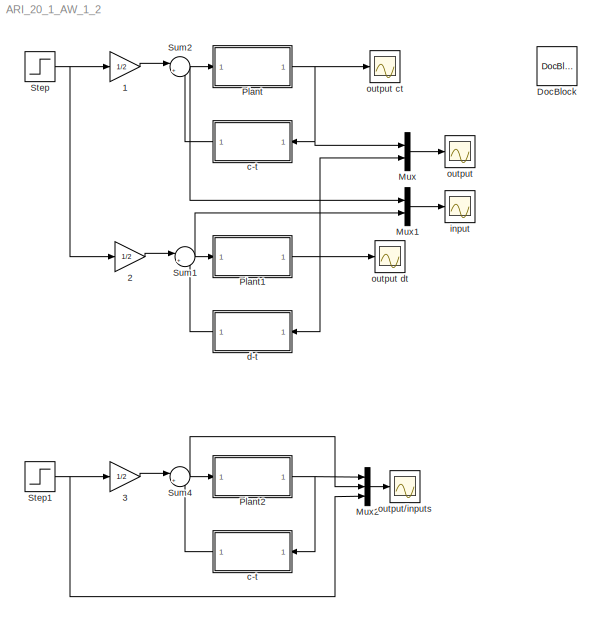
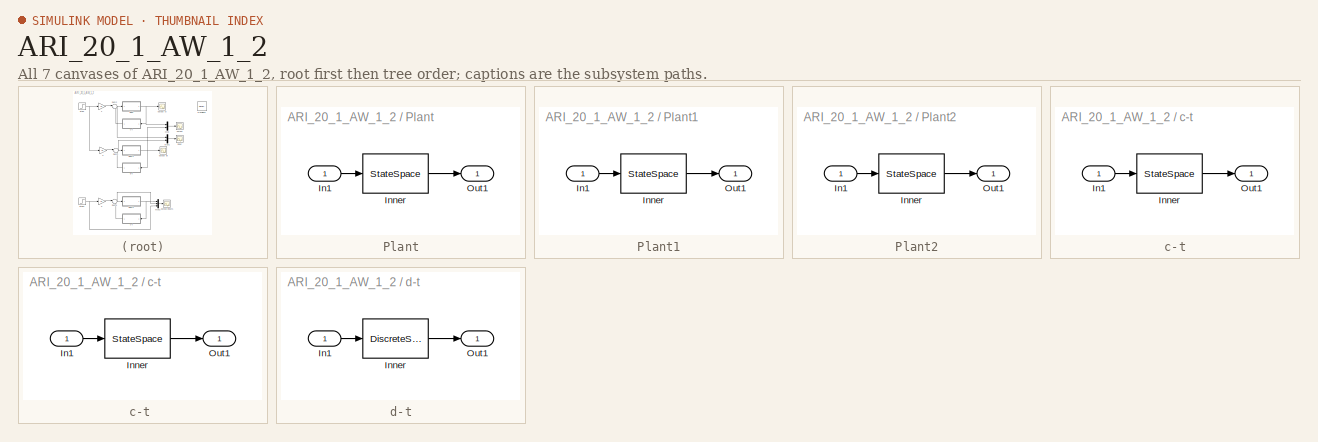
[diagram: thumbnail index - all 7 canvases of the model, root first then tree order]
MODEL ARI_20_1_AW_1_2
KIND model
BLOCK [Gain] 1
  Gain = 1/2
  OutDataTypeStr = Inherit: Inherit via internal rule
  ParamDataTypeStr = Inherit: Inherit via internal rule
  SID = 1
  SaturateOnIntegerOverflow = off
BLOCK [Gain] 2
  Gain = 1/2
  OutDataTypeStr = Inherit: Inherit via internal rule
  ParamDataTypeStr = Inherit: Inherit via internal rule
  SID = 2
  SaturateOnIntegerOverflow = off
BLOCK [Gain] 3
  Gain = 1/2
  OutDataTypeStr = Inherit: Inherit via internal rule
  ParamDataTypeStr = Inherit: Inherit via internal rule
  SID = 3
  SaturateOnIntegerOverflow = off
BLOCK [Reference] DocBlock  REF=simulink/Model-Wide\nUtilities/DocBlock
  DocumentType = Text
  Ports = []
  SID = 41
  SourceBlock = simulink/Model-Wide\nUtilities/DocBlock
  SourceType = DocBlock
  UserData = DataTag0
  UserDataPersistent = on
BLOCK [Mux] Mux
  DisplayOption = bar
  Inputs = 2
  Ports = [2, 1]
  SID = 4
BLOCK [Mux] Mux1
  DisplayOption = bar
  Inputs = 2
  Ports = [2, 1]
  SID = 5
BLOCK [Mux] Mux2
  DisplayOption = bar
  Inputs = 3
  Ports = [3, 1]
  SID = 6
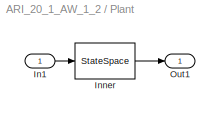
BLOCK [SubSystem] Plant
  FunctionWithSeparateData = off
  MaskHideContents = off
  MinAlgLoopOccurrences = off
  Opaque = off
  Ports = [1, 1]
  PropExecContextOutsideSubsystem = off
  RTWSystemCode = Auto
  RequestExecContextInheritance = off
  SID = 7
BLOCK [Inport] Plant/In1
  IconDisplay = Port number
  SID = 8
BLOCK [StateSpace] Plant/Inner
  A = A
  B = B
  C = C
  D = D
  SID = 9
  X0 = InCon
BLOCK [Outport] Plant/Out1
  IconDisplay = Port number
  SID = 10
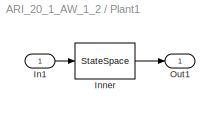
BLOCK [SubSystem] Plant1
  FunctionWithSeparateData = off
  MaskHideContents = off
  MinAlgLoopOccurrences = off
  Opaque = off
  Ports = [1, 1]
  PropExecContextOutsideSubsystem = off
  RTWSystemCode = Auto
  RequestExecContextInheritance = off
  SID = 11
BLOCK [Inport] Plant1/In1
  IconDisplay = Port number
  SID = 12
BLOCK [StateSpace] Plant1/Inner
  A = A
  B = B
  C = C
  D = D
  SID = 13
  X0 = InCon
BLOCK [Outport] Plant1/Out1
  IconDisplay = Port number
  SID = 14
BLOCK [SubSystem] Plant2
  FunctionWithSeparateData = off
  MaskHideContents = off
  MinAlgLoopOccurrences = off
  Opaque = off
  Ports = [1, 1]
  PropExecContextOutsideSubsystem = off
  RTWSystemCode = Auto
  RequestExecContextInheritance = off
  SID = 15
BLOCK [Inport] Plant2/In1
  IconDisplay = Port number
  SID = 16
BLOCK [StateSpace] Plant2/Inner
  A = A
  B = B
  C = C
  D = D
  SID = 17
  X0 = InCon
BLOCK [Outport] Plant2/Out1
  IconDisplay = Port number
  SID = 18
BLOCK [Step] Step
  SID = 19
  SampleTime = 0
  Time = 0
BLOCK [Step] Step1
  SID = 20
  SampleTime = 0
  Time = 0
BLOCK [Sum] Sum1
  IconShape = round
  InputSameDT = off
  Inputs = |+-
  OutDataTypeStr = Inherit: Inherit via internal rule
  Ports = [2, 1]
  SID = 21
  SaturateOnIntegerOverflow = off
BLOCK [Sum] Sum2
  IconShape = round
  InputSameDT = off
  Inputs = |+-
  OutDataTypeStr = Inherit: Inherit via internal rule
  Ports = [2, 1]
  SID = 22
  SaturateOnIntegerOverflow = off
BLOCK [Sum] Sum4
  IconShape = round
  InputSameDT = off
  Inputs = |+-
  OutDataTypeStr = Inherit: Inherit via internal rule
  Ports = [2, 1]
  SID = 23
  SaturateOnIntegerOverflow = off
BLOCK [SubSystem] c-t
  FunctionWithSeparateData = off
  MaskHideContents = off
  MinAlgLoopOccurrences = off
  Opaque = off
  Ports = [1, 1]
  PropExecContextOutsideSubsystem = off
  RTWSystemCode = Auto
  RequestExecContextInheritance = off
  SID = 24
BLOCK [SubSystem] c-t 
  FunctionWithSeparateData = off
  MaskHideContents = off
  MinAlgLoopOccurrences = off
  Opaque = off
  Ports = [1, 1]
  PropExecContextOutsideSubsystem = off
  RTWSystemCode = Auto
  RequestExecContextInheritance = off
  SID = 28
BLOCK [Inport] c-t /In1
  IconDisplay = Port number
  SID = 29
BLOCK [StateSpace] c-t /Inner
  A = A
  B = B
  C = C
  D = D
  SID = 30
  X0 = InCon
BLOCK [Outport] c-t /Out1
  IconDisplay = Port number
  SID = 31
BLOCK [Inport] c-t/In1
  IconDisplay = Port number
  SID = 25
BLOCK [StateSpace] c-t/Inner
  A = A
  B = B
  C = C
  D = D
  SID = 26
  X0 = InCon
BLOCK [Outport] c-t/Out1
  IconDisplay = Port number
  SID = 27
BLOCK [SubSystem] d-t
  FunctionWithSeparateData = off
  MaskHideContents = off
  MinAlgLoopOccurrences = off
  Opaque = off
  Ports = [1, 1]
  PropExecContextOutsideSubsystem = off
  RTWSystemCode = Auto
  RequestExecContextInheritance = off
  SID = 32
BLOCK [Inport] d-t/In1
  IconDisplay = Port number
  SID = 33
BLOCK [DiscreteStateSpace] d-t/Inner
  A = A
  B = B
  C = C
  D = D
  SID = 34
  SampleTime = SampTime
  X0 = InCon
BLOCK [Outport] d-t/Out1
  IconDisplay = Port number
  SID = 35
BLOCK [Scope] input
  DataFormat = StructureWithTime
  Floating = off
  NumInputPorts = 1
  Ports = [1]
  SID = 36
  SampleTime = 0
  SaveName = ScopeData2
  ShowLegends = off
BLOCK [Scope] output
  DataFormat = StructureWithTime
  Floating = off
  NumInputPorts = 1
  Ports = [1]
  SID = 37
  SampleTime = 0
  SaveName = ScopeData3
  ShowLegends = off
BLOCK [Scope] output ct
  DataFormat = StructureWithTime
  Floating = off
  NumInputPorts = 1
  Ports = [1]
  SID = 38
  SampleTime = 0
  SaveName = ScopeData1
  ShowLegends = off
BLOCK [Scope] output dt
  DataFormat = StructureWithTime
  Floating = off
  NumInputPorts = 1
  Ports = [1]
  SID = 39
  SampleTime = 0
  ShowLegends = off
BLOCK [Scope] output//inputs
  DataFormat = StructureWithTime
  Floating = off
  NumInputPorts = 1
  Ports = [1]
  SID = 40
  SampleTime = 0
  SaveName = ScopeData5
  ShowLegends = off
LINE 1:1 -> Sum2:1
LINE 2:1 -> Sum1:1
LINE 3:1 -> Sum4:1
LINE Mux1:1 -> input:1
LINE Mux2:1 -> output//inputs:1
LINE Mux:1 -> output:1
LINE Plant/In1:1 -> Plant/Inner:1
LINE Plant/Inner:1 -> Plant/Out1:1
LINE Plant1/In1:1 -> Plant1/Inner:1
LINE Plant1/Inner:1 -> Plant1/Out1:1
NET Plant1:1 -> Mux:2, d-t:1, output dt:1
LINE Plant2/In1:1 -> Plant2/Inner:1
LINE Plant2/Inner:1 -> Plant2/Out1:1
NET Plant2:1 -> Mux2:1, c-t :1
NET Plant:1 -> Mux:1, c-t:1, output ct:1
NET Step1:1 -> 3:1, Mux2:3
NET Step:1 -> 1:1, 2:1
NET Sum1:1 -> Mux1:2, Plant1:1
NET Sum2:1 -> Mux1:1, Plant:1
NET Sum4:1 -> Mux2:2, Plant2:1
LINE c-t /In1:1 -> c-t /Inner:1
LINE c-t /Inner:1 -> c-t /Out1:1
LINE c-t :1 -> Sum4:2
LINE c-t/In1:1 -> c-t/Inner:1
LINE c-t/Inner:1 -> c-t/Out1:1
LINE c-t:1 -> Sum2:2
LINE d-t/In1:1 -> d-t/Inner:1
LINE d-t/Inner:1 -> d-t/Out1:1
LINE d-t:1 -> Sum1:2
note: NET lines group one-source signal fan-out (src -> all destinations, sorted); 1:1 wires keep LINE
